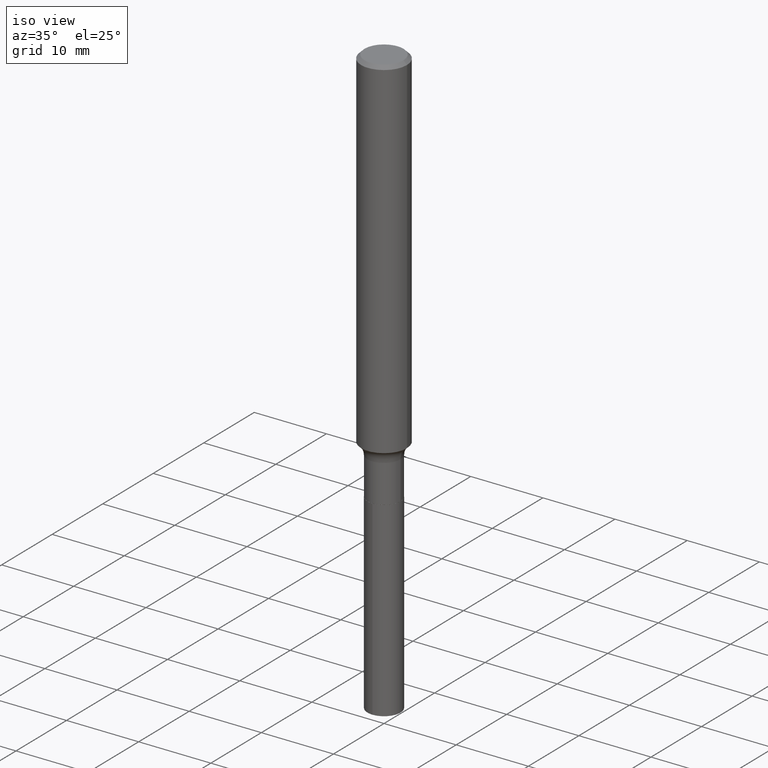
[diagram: clean part render]
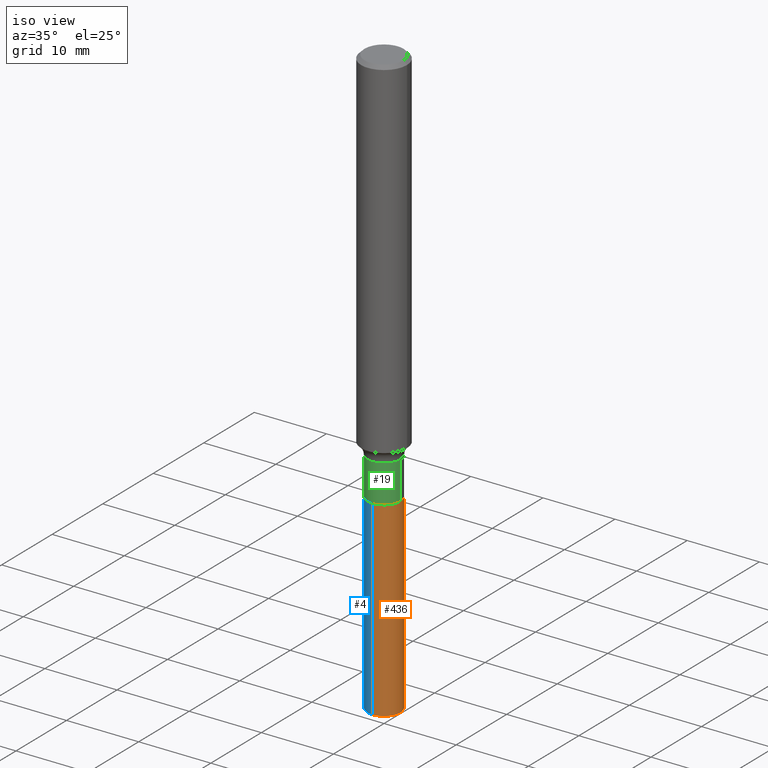
[diagram: same view with three faces highlighted in distinct colors, each labeled with its STEP entity id]
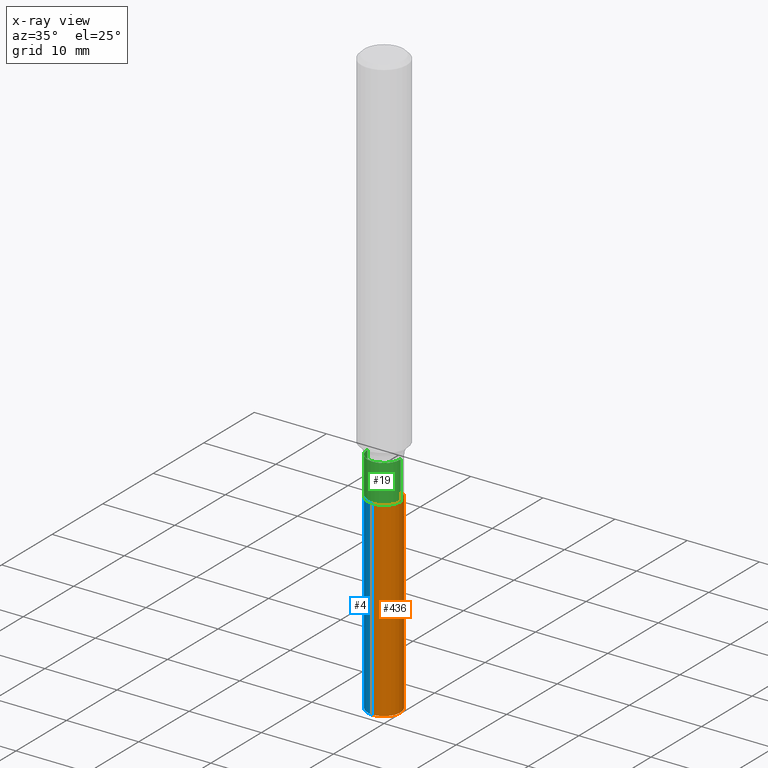
[diagram: x-ray of the same camera — body ghosted, the three highlighted faces saturated]
A machine part, iso view with three faces highlighted in distinct colors.
The next image is the same camera in x-ray (body ghosted, the three faces saturated) — at least one of them is partly hidden behind the body in this view.
Their STEP definitions:

[orange] entity #436 — the highlighted cylindrical surface (edge-blend (fillet) strip) has radius 2.286 mm, axis along (-0, 0, 1).
#35 = CARTESIAN_POINT ( 'NONE',  ( 6.394884621841690297E-16, 0.08999999999999239164, -2.180000000000000160 ) ) ;
#47 = DIRECTION ( 'NONE',  ( -6.982962677686265133E-15, -1.000000000000000000, 6.070773319253918263E-15 ) ) ;
#48 = CYLINDRICAL_SURFACE ( 'NONE', #114, 0.08999999999999999667 ) ;
#49 = EDGE_CURVE ( 'NONE', #112, #131, #295, .T. ) ;
#51 = DIRECTION ( 'NONE',  ( -2.445486424409932831E-29, 3.491456108542470269E-15, 1.000000000000000000 ) ) ;
#79 = EDGE_CURVE ( 'NONE', #240, #189, #149, .T. ) ;
#102 = EDGE_CURVE ( 'NONE', #112, #240, #269, .T. ) ;
#111 = CARTESIAN_POINT ( 'NONE',  ( 6.394884621841432931E-16, 0.08999999999999237776, -2.180000000000000160 ) ) ;
#112 = VERTEX_POINT ( 'NONE', #260 ) ;
#114 = AXIS2_PLACEMENT_3D ( 'NONE', #393, #361, #472 ) ;
#131 = VERTEX_POINT ( 'NONE', #188 ) ;
#140 = VECTOR ( 'NONE', #145, 39.37007874015748143 ) ;
#145 = DIRECTION ( 'NONE',  ( -2.445486424409932551E-29, 3.491456108542470269E-15, 1.000000000000000000 ) ) ;
#149 = LINE ( 'NONE', #111, #140 ) ;
#158 = DIRECTION ( 'NONE',  ( -6.982962677686265133E-15, -1.000000000000000000, 3.035386659626959132E-15 ) ) ;
#168 = FACE_OUTER_BOUND ( 'NONE', #351, .T. ) ;
#181 = AXIS2_PLACEMENT_3D ( 'NONE', #412, #271, #158 ) ;
#183 = CARTESIAN_POINT ( 'NONE',  ( -6.284666409917106178E-16, -0.09000000000000761557, -2.179999999999999716 ) ) ;
#188 = CARTESIAN_POINT ( 'NONE',  ( -6.284666409917106178E-16, -0.09000000000000761557, -2.179999999999999716 ) ) ;
#189 = VERTEX_POINT ( 'NONE', #35 ) ;
#240 = VERTEX_POINT ( 'NONE', #449 ) ;
#244 = ORIENTED_EDGE ( 'NONE', *, *, #301, .F. ) ;
#260 = CARTESIAN_POINT ( 'NONE',  ( -6.284666409916853742E-16, -0.09000000000001129319, -3.221623109000890661 ) ) ;
#269 = CIRCLE ( 'NONE', #327, 0.08999999999999999667 ) ;
#271 = DIRECTION ( 'NONE',  ( -2.445486424409932831E-29, 3.491456108542470269E-15, 1.000000000000000000 ) ) ;
#274 = ORIENTED_EDGE ( 'NONE', *, *, #49, .F. ) ;
#295 = LINE ( 'NONE', #183, #471 ) ;
#301 = EDGE_CURVE ( 'NONE', #131, #189, #321, .T. ) ;
#321 = CIRCLE ( 'NONE', #181, 0.08999999999999999667 ) ;
#327 = AXIS2_PLACEMENT_3D ( 'NONE', #392, #51, #47 ) ;
#351 = EDGE_LOOP ( 'NONE', ( #424, #488, #244, #274 ) ) ;
#361 = DIRECTION ( 'NONE',  ( -2.445486424409932831E-29, 3.491456108542470269E-15, 1.000000000000000000 ) ) ;
#392 = CARTESIAN_POINT ( 'NONE',  ( 7.878397169896945169E-29, -1.124821068539821746E-14, -3.221623109000891105 ) ) ;
#393 = CARTESIAN_POINT ( 'NONE',  ( 5.331121997483597646E-29, -7.611429318678056905E-15, -2.180000000000000160 ) ) ;
#412 = CARTESIAN_POINT ( 'NONE',  ( 5.331121997483597646E-29, -7.611429318678056905E-15, -2.180000000000000160 ) ) ;
#424 = ORIENTED_EDGE ( 'NONE', *, *, #102, .T. ) ;
#436 = ADVANCED_FACE ( 'NONE', ( #168 ), #48, .T. ) ;
#442 = DIRECTION ( 'NONE',  ( -2.445486424409932551E-29, 3.491456108542470269E-15, 1.000000000000000000 ) ) ;
#449 = CARTESIAN_POINT ( 'NONE',  ( 6.394884621841691283E-16, 0.08999999999998878342, -3.221623109000891549 ) ) ;
#471 = VECTOR ( 'NONE', #442, 39.37007874015748143 ) ;
#472 = DIRECTION ( 'NONE',  ( -6.982962677686265133E-15, -1.000000000000000000, 3.035386659626959132E-15 ) ) ;
#488 = ORIENTED_EDGE ( 'NONE', *, *, #79, .T. ) ;

[blue] entity #4 — the highlighted cylindrical surface (edge-blend (fillet) strip) has radius 2.286 mm, axis along (-0, 0, 1).
#1 = ORIENTED_EDGE ( 'NONE', *, *, #49, .T. ) ;
#4 = ADVANCED_FACE ( 'NONE', ( #385 ), #308, .T. ) ;
#23 = CIRCLE ( 'NONE', #287, 0.08999999999999999667 ) ;
#35 = CARTESIAN_POINT ( 'NONE',  ( 6.394884621841690297E-16, 0.08999999999999239164, -2.180000000000000160 ) ) ;
#49 = EDGE_CURVE ( 'NONE', #112, #131, #295, .T. ) ;
#64 = AXIS2_PLACEMENT_3D ( 'NONE', #378, #341, #492 ) ;
#79 = EDGE_CURVE ( 'NONE', #240, #189, #149, .T. ) ;
#91 = ORIENTED_EDGE ( 'NONE', *, *, #79, .F. ) ;
#95 = DIRECTION ( 'NONE',  ( -6.982962677686265133E-15, -1.000000000000000000, 3.035386659626959132E-15 ) ) ;
#98 = CIRCLE ( 'NONE', #64, 0.08999999999999999667 ) ;
#111 = CARTESIAN_POINT ( 'NONE',  ( 6.394884621841432931E-16, 0.08999999999999237776, -2.180000000000000160 ) ) ;
#112 = VERTEX_POINT ( 'NONE', #260 ) ;
#128 = CARTESIAN_POINT ( 'NONE',  ( 5.331121997483597646E-29, -7.611429318678056905E-15, -2.180000000000000160 ) ) ;
#131 = VERTEX_POINT ( 'NONE', #188 ) ;
#140 = VECTOR ( 'NONE', #145, 39.37007874015748143 ) ;
#145 = DIRECTION ( 'NONE',  ( -2.445486424409932551E-29, 3.491456108542470269E-15, 1.000000000000000000 ) ) ;
#149 = LINE ( 'NONE', #111, #140 ) ;
#183 = CARTESIAN_POINT ( 'NONE',  ( -6.284666409917106178E-16, -0.09000000000000761557, -2.179999999999999716 ) ) ;
#188 = CARTESIAN_POINT ( 'NONE',  ( -6.284666409917106178E-16, -0.09000000000000761557, -2.179999999999999716 ) ) ;
#189 = VERTEX_POINT ( 'NONE', #35 ) ;
#204 = DIRECTION ( 'NONE',  ( -6.982962677686265133E-15, -1.000000000000000000, 3.035386659626959132E-15 ) ) ;
#240 = VERTEX_POINT ( 'NONE', #449 ) ;
#249 = DIRECTION ( 'NONE',  ( -2.445486424409932831E-29, 3.491456108542470269E-15, 1.000000000000000000 ) ) ;
#257 = EDGE_CURVE ( 'NONE', #240, #112, #98, .T. ) ;
#260 = CARTESIAN_POINT ( 'NONE',  ( -6.284666409916853742E-16, -0.09000000000001129319, -3.221623109000890661 ) ) ;
#266 = ORIENTED_EDGE ( 'NONE', *, *, #430, .F. ) ;
#287 = AXIS2_PLACEMENT_3D ( 'NONE', #320, #249, #95 ) ;
#295 = LINE ( 'NONE', #183, #471 ) ;
#308 = CYLINDRICAL_SURFACE ( 'NONE', #390, 0.08999999999999999667 ) ;
#320 = CARTESIAN_POINT ( 'NONE',  ( 5.331121997483597646E-29, -7.611429318678056905E-15, -2.180000000000000160 ) ) ;
#341 = DIRECTION ( 'NONE',  ( -2.445486424409932831E-29, 3.491456108542470269E-15, 1.000000000000000000 ) ) ;
#378 = CARTESIAN_POINT ( 'NONE',  ( 7.878397169896945169E-29, -1.124821068539821746E-14, -3.221623109000891105 ) ) ;
#379 = DIRECTION ( 'NONE',  ( -2.445486424409932831E-29, 3.491456108542470269E-15, 1.000000000000000000 ) ) ;
#385 = FACE_OUTER_BOUND ( 'NONE', #408, .T. ) ;
#390 = AXIS2_PLACEMENT_3D ( 'NONE', #128, #379, #204 ) ;
#408 = EDGE_LOOP ( 'NONE', ( #91, #426, #1, #266 ) ) ;
#426 = ORIENTED_EDGE ( 'NONE', *, *, #257, .T. ) ;
#430 = EDGE_CURVE ( 'NONE', #189, #131, #23, .T. ) ;
#442 = DIRECTION ( 'NONE',  ( -2.445486424409932551E-29, 3.491456108542470269E-15, 1.000000000000000000 ) ) ;
#449 = CARTESIAN_POINT ( 'NONE',  ( 6.394884621841691283E-16, 0.08999999999998878342, -3.221623109000891549 ) ) ;
#471 = VECTOR ( 'NONE', #442, 39.37007874015748143 ) ;
#492 = DIRECTION ( 'NONE',  ( -6.982962677686265133E-15, -1.000000000000000000, 6.070773319253918263E-15 ) ) ;

[green] entity #19 — the highlighted cylindrical surface (edge-blend (fillet) strip) has radius 2.286 mm, axis along (-0, 0, 1).
#2 = VECTOR ( 'NONE', #419, 39.37007874015748143 ) ;
#13 = ORIENTED_EDGE ( 'NONE', *, *, #139, .F. ) ;
#19 = ADVANCED_FACE ( 'NONE', ( #127 ), #421, .T. ) ;
#38 = VERTEX_POINT ( 'NONE', #369 ) ;
#66 = ORIENTED_EDGE ( 'NONE', *, *, #89, .T. ) ;
#87 = CARTESIAN_POINT ( 'NONE',  ( 0.000000000000000000, 0.000000000000000000, 0.000000000000000000 ) ) ;
#89 = EDGE_CURVE ( 'NONE', #186, #197, #236, .T. ) ;
#97 = CIRCLE ( 'NONE', #365, 0.08999999999999998279 ) ;
#115 = CARTESIAN_POINT ( 'NONE',  ( 4.824909954603274806E-29, -6.888692681537526817E-15, -1.973000000000000309 ) ) ;
#121 = LINE ( 'NONE', #198, #2 ) ;
#127 = FACE_OUTER_BOUND ( 'NONE', #483, .T. ) ;
#137 = CARTESIAN_POINT ( 'NONE',  ( 5.329899263080504845E-29, -7.609683578008636190E-15, -2.179499999999999993 ) ) ;
#139 = EDGE_CURVE ( 'NONE', #38, #350, #97, .T. ) ;
#154 = CARTESIAN_POINT ( 'NONE',  ( 0.08999999999999998279, -7.517159322529290979E-15, -1.973000000000000309 ) ) ;
#186 = VERTEX_POINT ( 'NONE', #250 ) ;
#191 = DIRECTION ( 'NONE',  ( -2.445468806185136877E-29, 3.491481338843145188E-15, 1.000000000000000000 ) ) ;
#197 = VERTEX_POINT ( 'NONE', #309 ) ;
#198 = CARTESIAN_POINT ( 'NONE',  ( -0.08999999999999999667, 6.394884621840901436E-16, -4.427041581229415120E-30 ) ) ;
#212 = EDGE_CURVE ( 'NONE', #197, #350, #300, .T. ) ;
#231 = CARTESIAN_POINT ( 'NONE',  ( 0.08999999999999999667, -6.284666409917639645E-16, 4.388559098216341933E-30 ) ) ;
#236 = CIRCLE ( 'NONE', #413, 0.08999999999999999667 ) ;
#250 = CARTESIAN_POINT ( 'NONE',  ( -0.08999999999999999667, -6.609699667588991163E-15, -2.179499999999999993 ) ) ;
#252 = DIRECTION ( 'NONE',  ( 1.000000000000000000, -6.982962677686269866E-15, 0.000000000000000000 ) ) ;
#264 = ORIENTED_EDGE ( 'NONE', *, *, #212, .T. ) ;
#294 = DIRECTION ( 'NONE',  ( -2.445468806185136597E-29, 3.491481338843145583E-15, 1.000000000000000000 ) ) ;
#300 = LINE ( 'NONE', #231, #473 ) ;
#309 = CARTESIAN_POINT ( 'NONE',  ( 0.08999999999999999667, -8.238150219000399563E-15, -2.179499999999999993 ) ) ;
#326 = EDGE_CURVE ( 'NONE', #186, #38, #121, .T. ) ;
#344 = AXIS2_PLACEMENT_3D ( 'NONE', #87, #484, #474 ) ;
#350 = VERTEX_POINT ( 'NONE', #154 ) ;
#362 = DIRECTION ( 'NONE',  ( 1.000000000000000000, -6.982962677686269077E-15, 0.000000000000000000 ) ) ;
#365 = AXIS2_PLACEMENT_3D ( 'NONE', #115, #294, #252 ) ;
#369 = CARTESIAN_POINT ( 'NONE',  ( -0.08999999999999998279, -6.609699667588991163E-15, -1.973000000000000309 ) ) ;
#410 = ORIENTED_EDGE ( 'NONE', *, *, #326, .F. ) ;
#413 = AXIS2_PLACEMENT_3D ( 'NONE', #137, #444, #362 ) ;
#419 = DIRECTION ( 'NONE',  ( -2.445468806185136877E-29, 3.491481338843145188E-15, 1.000000000000000000 ) ) ;
#421 = CYLINDRICAL_SURFACE ( 'NONE', #344, 0.08999999999999999667 ) ;
#444 = DIRECTION ( 'NONE',  ( -2.445468806185136597E-29, 3.491481338843145583E-15, 1.000000000000000000 ) ) ;
#473 = VECTOR ( 'NONE', #191, 39.37007874015748143 ) ;
#474 = DIRECTION ( 'NONE',  ( 1.000000000000000000, -6.982962677686266711E-15, 4.876176775795935793E-29 ) ) ;
#483 = EDGE_LOOP ( 'NONE', ( #410, #66, #264, #13 ) ) ;
#484 = DIRECTION ( 'NONE',  ( -2.445468806185136597E-29, 3.491481338843145583E-15, 1.000000000000000000 ) ) ;